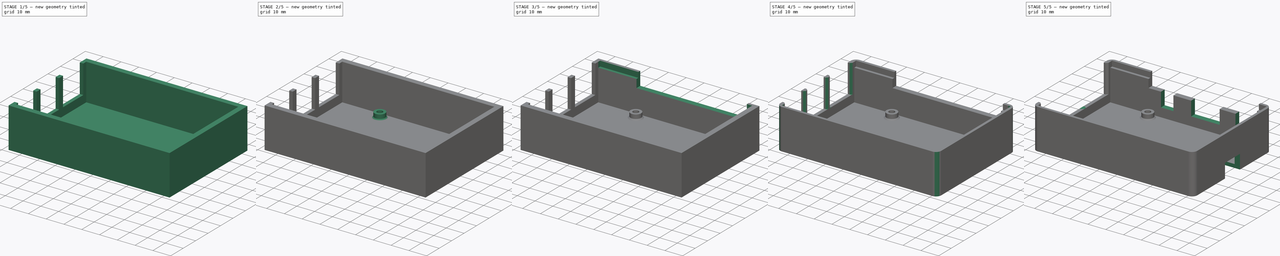
[diagram: build sequence overview — one tinted view per stage of 5, left to right]
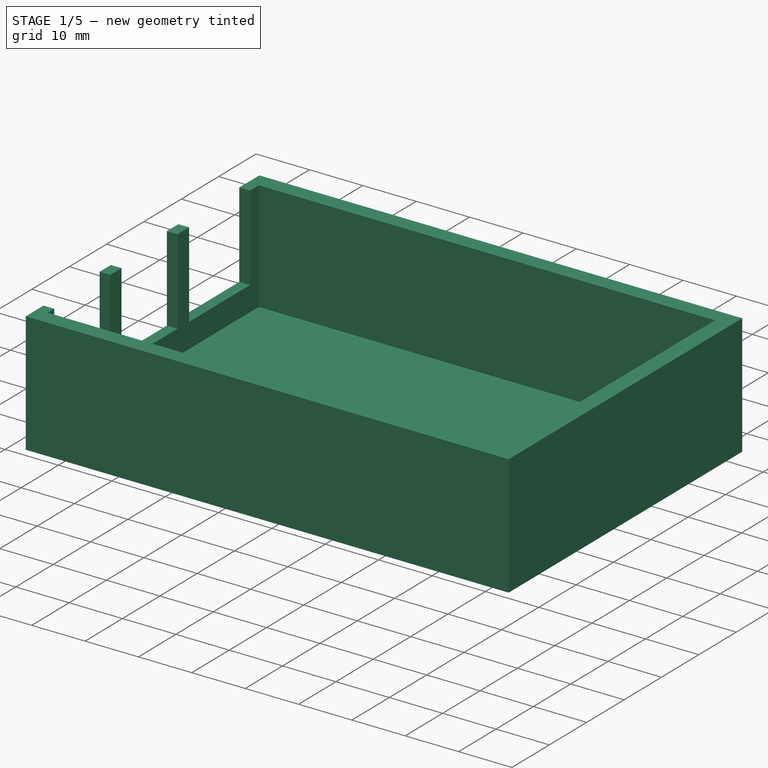
[diagram: stage 1 of 5 — iso view after this stage's code; geometry added in this stage tinted green]
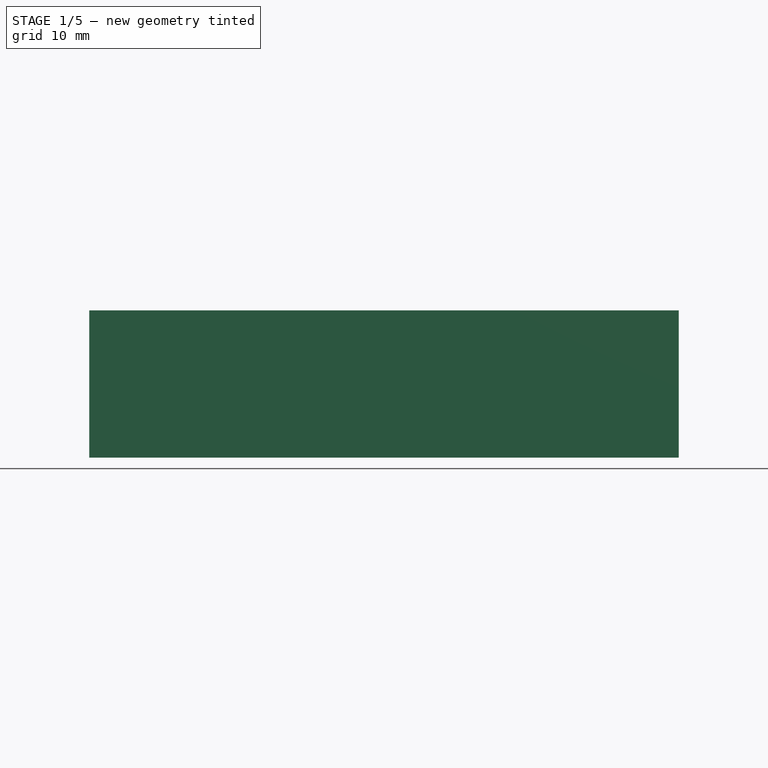
[diagram: stage 1 of 5 — front view after this stage's code; geometry added in this stage tinted green]
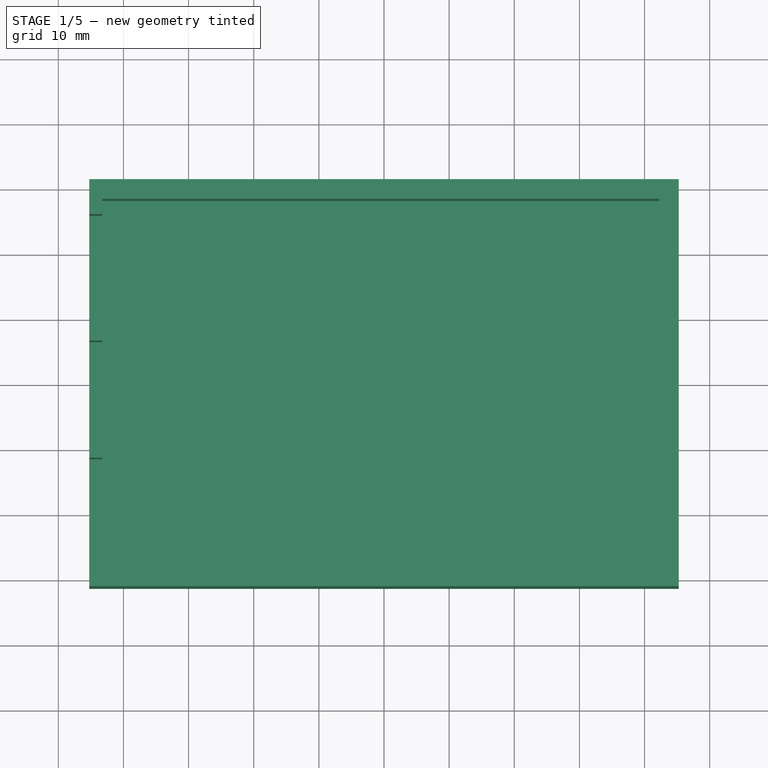
[diagram: stage 1 of 5 — top view after this stage's code; geometry added in this stage tinted green]
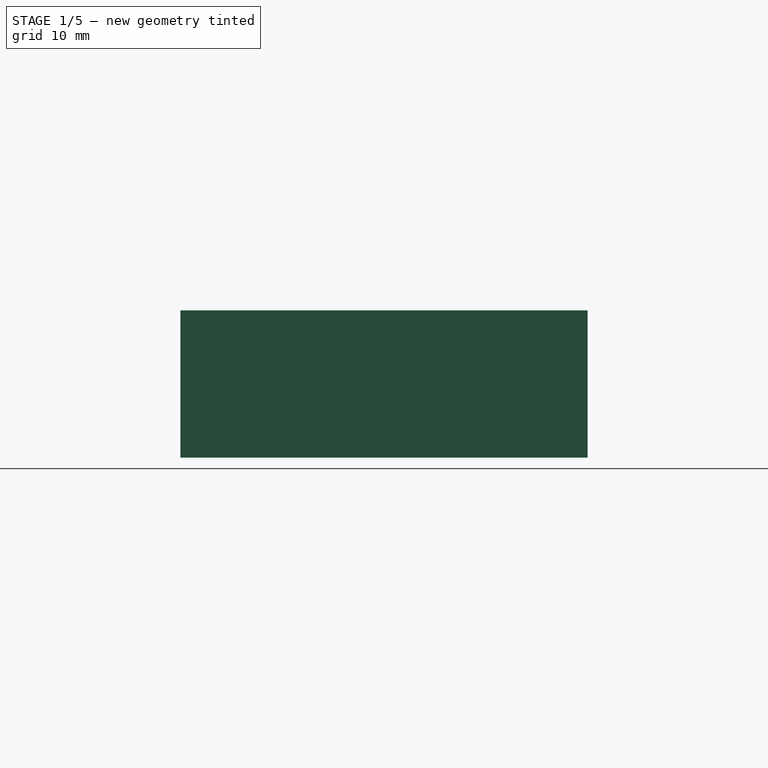
[diagram: stage 1 of 5 — right view after this stage's code; geometry added in this stage tinted green]
FCSTD DOCUMENT  (FreeCAD 0.19R19180 (Git))
Label: base
License: All rights reserved
LicenseURL: http://en.wikipedia.org/wiki/All_rights_reserved
objects: Sketcher::SketchObject×14, PartDesign::Pocket×12, PartDesign::Pad×2, PartDesign::Chamfer×2, PartDesign::Fillet×1, PartDesign::Body×1
note: 46 computed .brp shape members not serialized (recipe doc carries the construction recipe); baked Part::Feature solids carry a one-line shape summary decoded from their .brp

FEATURE [Sketcher::SketchObject] Sketch
  MapMode = 5
  Support = -> [XY_Plane]
  sketch-geometry (4):
    g0: LineSegment StartX=-45.25 StartY=31.25 StartZ=0 EndX=45.25 EndY=31.25 EndZ=0
    g1: LineSegment StartX=45.25 StartY=31.25 StartZ=0 EndX=45.25 EndY=-31.25 EndZ=0
    g2: LineSegment StartX=45.25 StartY=-31.25 StartZ=0 EndX=-45.25 EndY=-31.25 EndZ=0
    g3: LineSegment StartX=-45.25 StartY=-31.25 StartZ=0 EndX=-45.25 EndY=31.25 EndZ=0
  constraints (12):
    c: Coincident(g0,g1)
    c: Coincident(g1,g2)
    c: Coincident(g2,g3)
    c: Coincident(g3,g0)
    c: Horizontal(g0)
    c: Horizontal(g2)
    c: Vertical(g1)
    c: Vertical(g3)
    c: DistanceX(g0,g0) = 90.5
    c: DistanceY(g1,g1) = 62.5
    c: DistanceX(g0,g-1) = 45.25
    c: DistanceY(g-1,g0) = 31.25
FEATURE [PartDesign::Pad] Pad
  Length = 22.6
  Length2 = 100
  Profile = -> Sketch
  Type = 0
FEATURE [Sketcher::SketchObject] Sketch001
  ExternalGeometry = -> [Pad]
  MapMode = 5
  Placement = pos=(0,0,22.6) rot=(0,0,1;0rad)
  Support = -> [Pad]
  sketch-geometry (4):
    g0: LineSegment StartX=-43.25 StartY=28.25 StartZ=0 EndX=42.25 EndY=28.25 EndZ=0
    g1: LineSegment StartX=42.25 StartY=28.25 StartZ=0 EndX=42.25 EndY=-28.25 EndZ=0
    g2: LineSegment StartX=42.25 StartY=-28.25 StartZ=0 EndX=-43.25 EndY=-28.25 EndZ=0
    g3: LineSegment StartX=-43.25 StartY=-28.25 StartZ=0 EndX=-43.25 EndY=28.25 EndZ=0
  constraints (12):
    c: Coincident(g0,g1)
    c: Coincident(g1,g2)
    c: Coincident(g2,g3)
    c: Coincident(g3,g0)
    c: Horizontal(g0)
    c: Horizontal(g2)
    c: Vertical(g1)
    c: Vertical(g3)
    c: DistanceX(g-3,g2) = 2
    c: DistanceY(g-3,g2) = 3
    c: DistanceX(g1,g-4) = 3
    c: DistanceY(g0,g-5) = 3
FEATURE [PartDesign::Pocket] Pocket
  BaseFeature = -> Pad
  Length = 20.6
  Length2 = 100
  Profile = -> Sketch001
  Type = 0
FEATURE [Sketcher::SketchObject] Sketch002
  ExternalGeometry = -> [Pocket]
  MapMode = 5
  Placement = pos=(-45.25,0,0) rot=(0.57735,-0.57735,-0.57735;2.0944rad)
  Support = -> [Pocket]
  sketch-geometry (12):
    g0: LineSegment StartX=11.5 StartY=22.6 StartZ=0 EndX=26.5 EndY=22.6 EndZ=0
    g1: LineSegment StartX=26.5 StartY=22.6 StartZ=0 EndX=26.5 EndY=6.6 EndZ=0
    g2: LineSegment StartX=26.5 StartY=6.6 StartZ=0 EndX=11.5 EndY=6.6 EndZ=0
    g3: LineSegment StartX=11.5 StartY=6.6 StartZ=0 EndX=11.5 EndY=22.6 EndZ=0
    g4: LineSegment StartX=-6.5 StartY=22.6 StartZ=0 EndX=8.5 EndY=22.6 EndZ=0
    g5: LineSegment StartX=8.5 StartY=22.6 StartZ=0 EndX=8.5 EndY=6.6 EndZ=0
    g6: LineSegment StartX=8.5 StartY=6.6 StartZ=0 EndX=-6.5 EndY=6.6 EndZ=0
    g7: LineSegment StartX=-6.5 StartY=6.6 StartZ=0 EndX=-6.5 EndY=22.6 EndZ=0
    g8: LineSegment StartX=-25.9 StartY=22.6 StartZ=0 EndX=-9.6 EndY=22.6 EndZ=0
    g9: LineSegment StartX=-9.6 StartY=22.6 StartZ=0 EndX=-9.6 EndY=6.6 EndZ=0
    g10: LineSegment StartX=-9.6 StartY=6.6 StartZ=0 EndX=-25.9 EndY=6.6 EndZ=0
    g11: LineSegment StartX=-25.9 StartY=6.6 StartZ=0 EndX=-25.9 EndY=22.6 EndZ=0
  constraints (36):
    c: Coincident(g0,g1)
    c: Coincident(g1,g2)
    c: Coincident(g2,g3)
    c: Coincident(g3,g0)
    c: Horizontal(g0)
    c: Horizontal(g2)
    c: Vertical(g1)
    c: Vertical(g3)
    c: Coincident(g4,g5)
    c: Coincident(g5,g6)
    c: Coincident(g6,g7)
    c: Coincident(g7,g4)
    c: Horizontal(g4)
    c: Horizontal(g6)
    c: Vertical(g5)
    c: Vertical(g7)
    c: Coincident(g8,g9)
    c: Coincident(g9,g10)
    c: Coincident(g10,g11)
    c: Coincident(g11,g8)
    c: Horizontal(g8)
    c: Horizontal(g10)
    c: Vertical(g9)
    c: Vertical(g11)
    c: Equal(g1,g5)
    c: DistanceY(g1,g1) = 16
    c: Horizontal(g1,g5)
    c: Equal(g2,g6)
    c: DistanceX(g6,g6) = 15
    c: DistanceX(g8,g8) = 16.3
    c: Horizontal(g0,g-4)
    c: DistanceY(g-1,g9) = 6.6
    c: Horizontal(g8,g4)
    c: DistanceX(g-5,g10) = 5.35
    c: DistanceX(g-5,g6) = 24.75
    c: DistanceX(g-5,g2) = 42.75
FEATURE [PartDesign::Pocket] Pocket001
  BaseFeature = -> Pocket
  Length = 5
  Length2 = 100
  Profile = -> Sketch002
  Type = 0
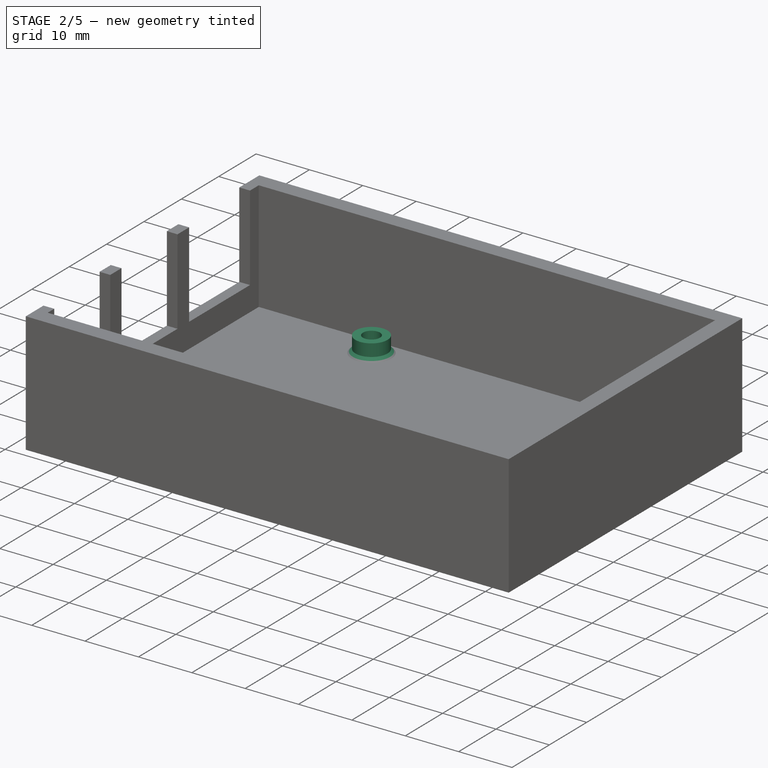
[diagram: stage 2 of 5 — iso view after this stage's code; geometry added in this stage tinted green]
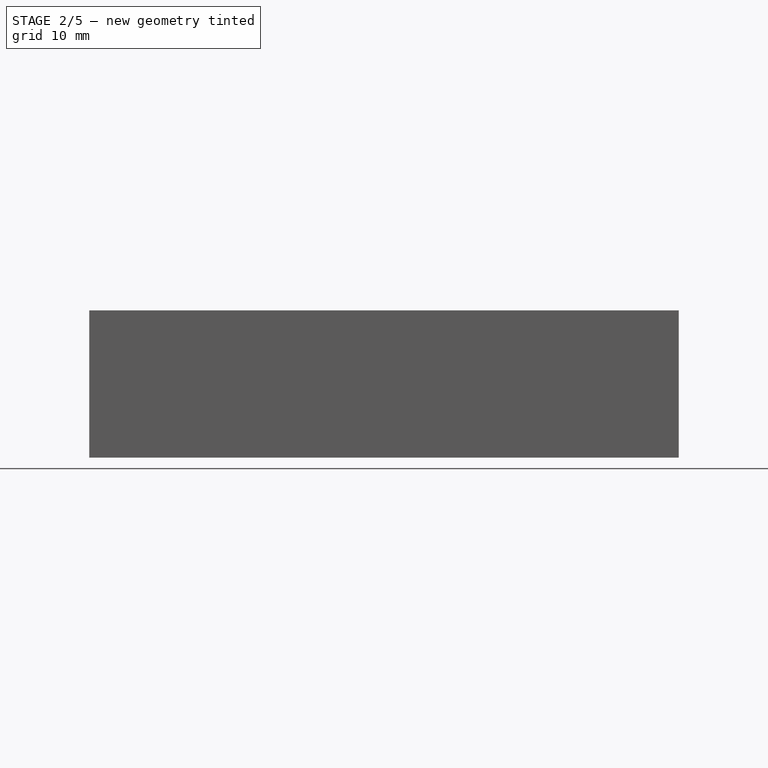
[diagram: stage 2 of 5 — front view after this stage's code; geometry added in this stage tinted green]
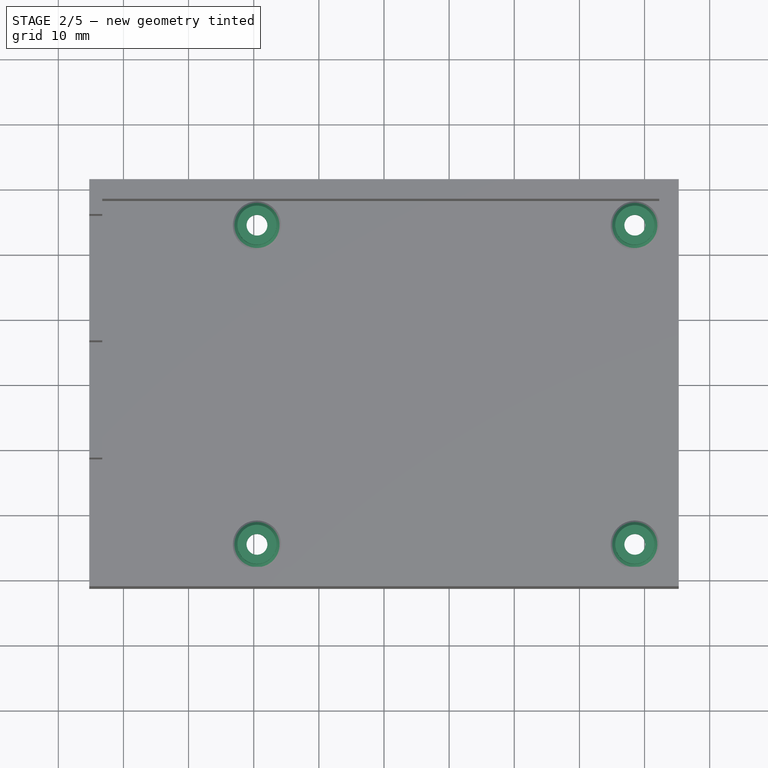
[diagram: stage 2 of 5 — top view after this stage's code; geometry added in this stage tinted green]
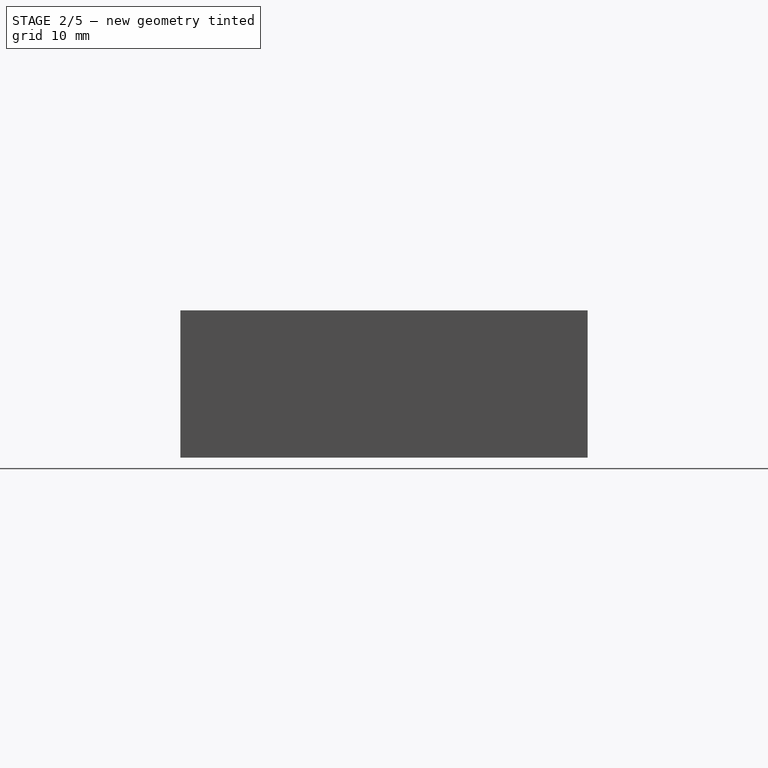
[diagram: stage 2 of 5 — right view after this stage's code; geometry added in this stage tinted green]
FEATURE [Sketcher::SketchObject] Sketch003
  ExternalGeometry = -> [Pocket001]
  MapMode = 5
  Placement = pos=(0,0,2) rot=(0,0,1;0rad)
  Support = -> [Pocket001]
  sketch-geometry (4):
    g0: Circle CenterX=-19.5 CenterY=24.5 CenterZ=0 NormalX=0 NormalY=0 NormalZ=1 AngleXU=0 Radius=3
    g1: Circle CenterX=38.5 CenterY=24.5 CenterZ=0 NormalX=0 NormalY=0 NormalZ=1 AngleXU=0 Radius=3
    g2: Circle CenterX=-19.5 CenterY=-24.5 CenterZ=0 NormalX=0 NormalY=0 NormalZ=1 AngleXU=0 Radius=3
    g3: Circle CenterX=38.5 CenterY=-24.5 CenterZ=0 NormalX=0 NormalY=0 NormalZ=1 AngleXU=0 Radius=3
  constraints (12):
    c: Horizontal(g0,g1)
    c: Horizontal(g2,g3)
    c: Vertical(g0,g2)
    c: Vertical(g1,g3)
    c: Diameter(g2) = 6
    c: Equal(g2,g0)
    c: Equal(g2,g1)
    c: Equal(g2,g3)
    c: DistanceX(g0,g1) = 58
    c: DistanceY(g2,g0) = 49
    c: DistanceX(g1,g-3) = 3.75
    c: DistanceY(g1,g-3) = 3.75
FEATURE [PartDesign::Pad] Pad001
  BaseFeature = -> Pocket001
  Length = 3
  Length2 = 100
  Profile = -> Sketch003
  Type = 0
FEATURE [Sketcher::SketchObject] Sketch004
  ExternalGeometry = -> [Pad001]
  MapMode = 5
  Placement = pos=(0,0,5) rot=(0,0,1;0rad)
  Support = -> [Pad001]
  sketch-geometry (4):
    g0: Circle CenterX=-19.5 CenterY=24.5 CenterZ=0 NormalX=0 NormalY=0 NormalZ=1 AngleXU=0 Radius=1.6
    g1: Circle CenterX=38.5 CenterY=24.5 CenterZ=0 NormalX=0 NormalY=0 NormalZ=1 AngleXU=0 Radius=1.6
    g2: Circle CenterX=-19.5 CenterY=-24.5 CenterZ=0 NormalX=0 NormalY=0 NormalZ=1 AngleXU=0 Radius=1.6
    g3: Circle CenterX=38.5 CenterY=-24.5 CenterZ=0 NormalX=0 NormalY=0 NormalZ=1 AngleXU=0 Radius=1.6
  constraints (12):
    c: Horizontal(g3,g2)
    c: Horizontal(g0,g1)
    c: Vertical(g0,g2)
    c: Vertical(g1,g3)
    c: DistanceX(g0,g1) = 58
    c: DistanceY(g2,g0) = 49
    c: DistanceX(g1,g-3) = 3.75
    c: DistanceY(g1,g-3) = 3.75
    c: Diameter(g0) = 3.2
    c: Equal(g0,g1)
    c: Equal(g0,g3)
    c: Equal(g0,g2)
FEATURE [PartDesign::Pocket] Pocket002
  BaseFeature = -> Pad001
  Length = 5
  Length2 = 100
  Profile = -> Sketch004
  Type = 0
FEATURE [Sketcher::SketchObject] Sketch005
  ExternalGeometry = -> [Pocket002]
  MapMode = 5
  Placement = pos=(0,0,0) rot=(1,0,0;3.14159rad)
  Support = -> [Pocket002]
  sketch-geometry (4):
    g0: Circle CenterX=38.5 CenterY=24.5 CenterZ=0 NormalX=0 NormalY=0 NormalZ=1 AngleXU=0 Radius=2.65
    g1: Circle CenterX=-19.5 CenterY=24.5 CenterZ=0 NormalX=0 NormalY=0 NormalZ=1 AngleXU=0 Radius=2.65
    g2: Circle CenterX=-19.5 CenterY=-24.5 CenterZ=0 NormalX=0 NormalY=0 NormalZ=1 AngleXU=0 Radius=2.65
    g3: Circle CenterX=38.5 CenterY=-24.5 CenterZ=0 NormalX=0 NormalY=0 NormalZ=1 AngleXU=0 Radius=2.65
  constraints (12):
    c: Diameter(g1) = 5.3
    c: Equal(g1,g0)
    c: Equal(g1,g3)
    c: Equal(g1,g2)
    c: Horizontal(g1,g0)
    c: Horizontal(g2,g3)
    c: Vertical(g2,g1)
    c: Vertical(g0,g3)
    c: DistanceX(g1,g0) = 58
    c: DistanceY(g2,g1) = 49
    c: DistanceX(g0,g-3) = 6.75
    c: DistanceY(g0,g-3) = 6.75
FEATURE [PartDesign::Pocket] Pocket003
  BaseFeature = -> Pocket002
  Length = 2.5
  Length2 = 100
  Profile = -> Sketch005
  Type = 0
FEATURE [PartDesign::Chamfer] Chamfer
  Base = -> Pocket003 [Edge78,Edge77,Edge80,Edge79]
  BaseFeature = -> Pocket003
  Size = 0.7
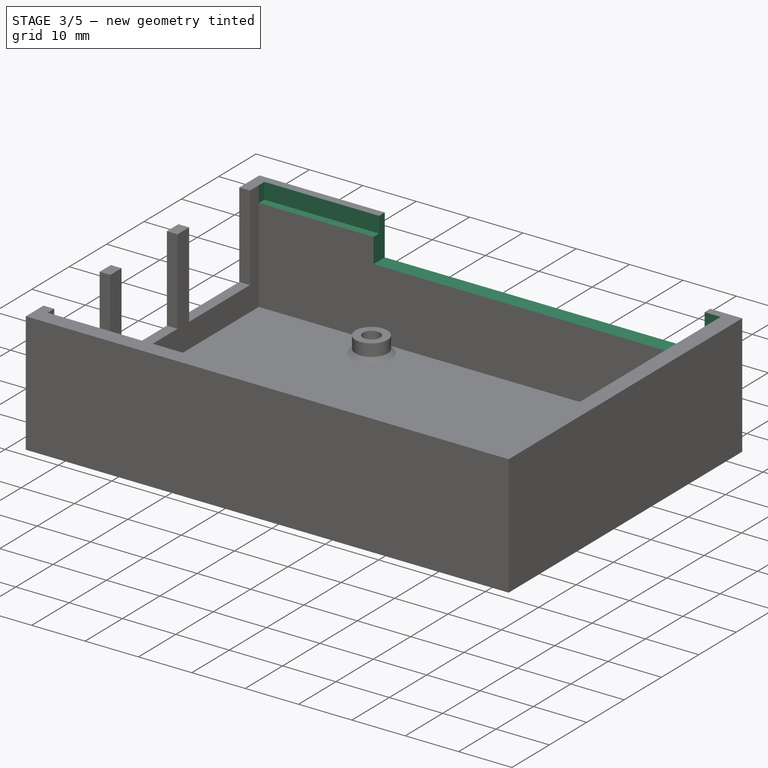
[diagram: stage 3 of 5 — iso view after this stage's code; geometry added in this stage tinted green]
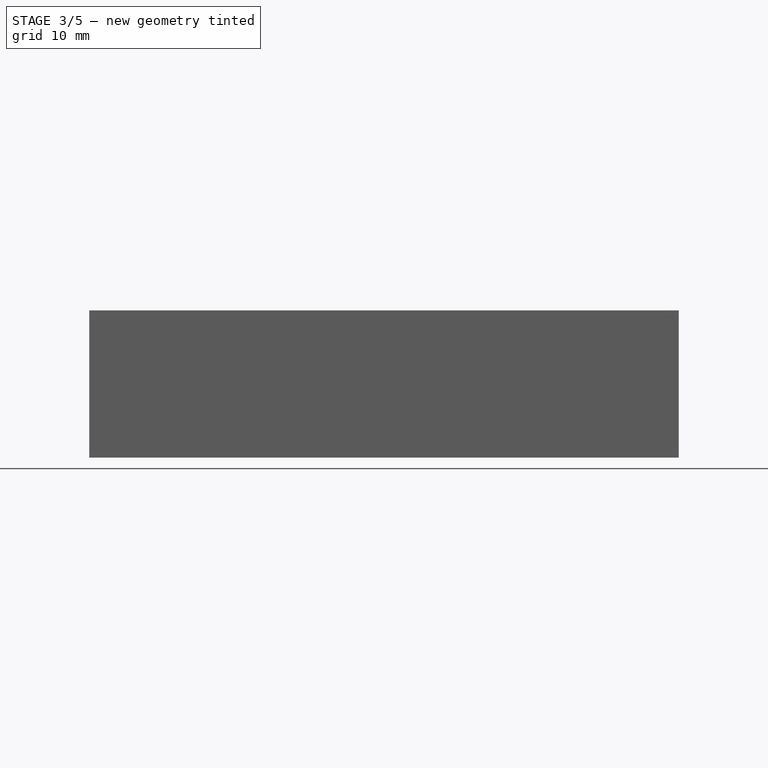
[diagram: stage 3 of 5 — front view after this stage's code; geometry added in this stage tinted green]
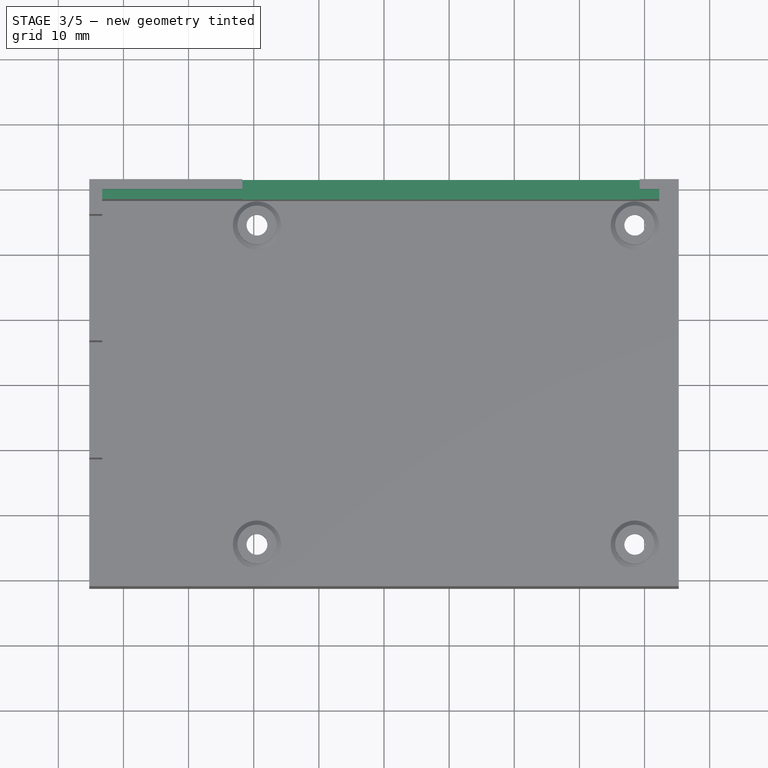
[diagram: stage 3 of 5 — top view after this stage's code; geometry added in this stage tinted green]
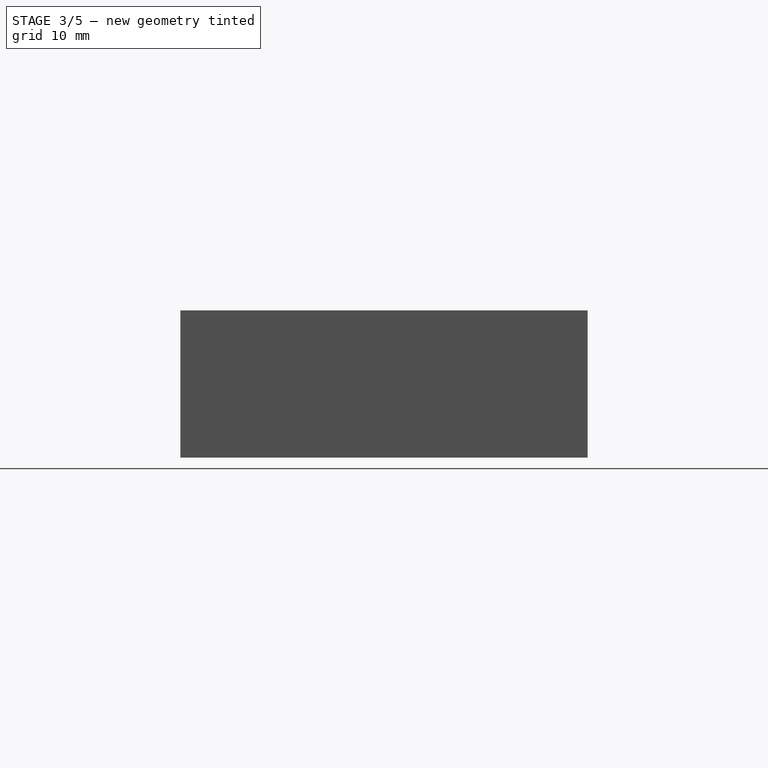
[diagram: stage 3 of 5 — right view after this stage's code; geometry added in this stage tinted green]
FEATURE [Sketcher::SketchObject] Sketch006
  ExternalGeometry = -> [Chamfer]
  MapMode = 5
  Placement = pos=(0,0,22.6) rot=(0,0,1;0rad)
  Support = -> [Chamfer]
  sketch-geometry (4):
    g0: LineSegment StartX=-21.75 StartY=31.25 StartZ=0 EndX=39.25 EndY=31.25 EndZ=0
    g1: LineSegment StartX=39.25 StartY=31.25 StartZ=0 EndX=39.25 EndY=28.25 EndZ=0
    g2: LineSegment StartX=39.25 StartY=28.25 StartZ=0 EndX=-21.75 EndY=28.25 EndZ=0
    g3: LineSegment StartX=-21.75 StartY=28.25 StartZ=0 EndX=-21.75 EndY=31.25 EndZ=0
  constraints (12):
    c: Coincident(g0,g1)
    c: Coincident(g1,g2)
    c: Coincident(g2,g3)
    c: Coincident(g3,g0)
    c: Horizontal(g0)
    c: Horizontal(g2)
    c: Vertical(g1)
    c: Vertical(g3)
    c: DistanceY(g0,g-4) = 0
    c: DistanceY(g-3,g1) = 0
    c: DistanceX(g1,g-3) = 3
    c: DistanceX(g0,g0) = 61
FEATURE [PartDesign::Pocket] Pocket004
  BaseFeature = -> Chamfer
  Length = 7.6
  Length2 = 100
  Profile = -> Sketch006
  Type = 0
FEATURE [Sketcher::SketchObject] Sketch007
  ExternalGeometry = -> [Pocket004]
  MapMode = 5
  Placement = pos=(0,0,22.6) rot=(0,0,1;0rad)
  Support = -> [Pocket004]
  sketch-geometry (4):
    g0: LineSegment StartX=-43.25 StartY=29.75 StartZ=0 EndX=-21.75 EndY=29.75 EndZ=0
    g1: LineSegment StartX=-21.75 StartY=29.75 StartZ=0 EndX=-21.75 EndY=28.25 EndZ=0
    g2: LineSegment StartX=-21.75 StartY=28.25 StartZ=0 EndX=-43.25 EndY=28.25 EndZ=0
    g3: LineSegment StartX=-43.25 StartY=28.25 StartZ=0 EndX=-43.25 EndY=29.75 EndZ=0
  constraints (12):
    c: Coincident(g0,g1)
    c: Coincident(g1,g2)
    c: Coincident(g2,g3)
    c: Coincident(g3,g0)
    c: Horizontal(g0)
    c: Horizontal(g2)
    c: Vertical(g1)
    c: Vertical(g3)
    c: DistanceY(g-3,g1) = 0
    c: DistanceX(g1,g-3) = 0
    c: DistanceX(g-4,g2) = 0
    c: DistanceY(g3,g3) = 1.5
FEATURE [PartDesign::Pocket] Pocket005
  BaseFeature = -> Pocket004
  Length = 3
  Length2 = 100
  Profile = -> Sketch007
  Type = 0
FEATURE [Sketcher::SketchObject] Sketch008
  ExternalGeometry = -> [Pocket005]
  MapMode = 5
  Placement = pos=(0,0,22.6) rot=(0,0,1;0rad)
  Support = -> [Pocket005]
  sketch-geometry (4):
    g0: LineSegment StartX=39.25 StartY=29.75 StartZ=0 EndX=42.25 EndY=29.75 EndZ=0
    g1: LineSegment StartX=42.25 StartY=29.75 StartZ=0 EndX=42.25 EndY=28.25 EndZ=0
    g2: LineSegment StartX=42.25 StartY=28.25 StartZ=0 EndX=39.25 EndY=28.25 EndZ=0
    g3: LineSegment StartX=39.25 StartY=28.25 StartZ=0 EndX=39.25 EndY=29.75 EndZ=0
  constraints (11):
    c: Coincident(g0,g1)
    c: Coincident(g1,g2)
    c: Coincident(g2,g3)
    c: Coincident(g3,g0)
    c: Horizontal(g0)
    c: Horizontal(g2)
    c: Vertical(g1)
    c: Vertical(g3)
    c: Coincident(g1,g-4)
    c: DistanceX(g-3,g2) = 0
    c: DistanceY(g1,g1) = 1.5
FEATURE [PartDesign::Pocket] Pocket006
  BaseFeature = -> Pocket005
  Length = 3
  Length2 = 100
  Profile = -> Sketch008
  Type = 0
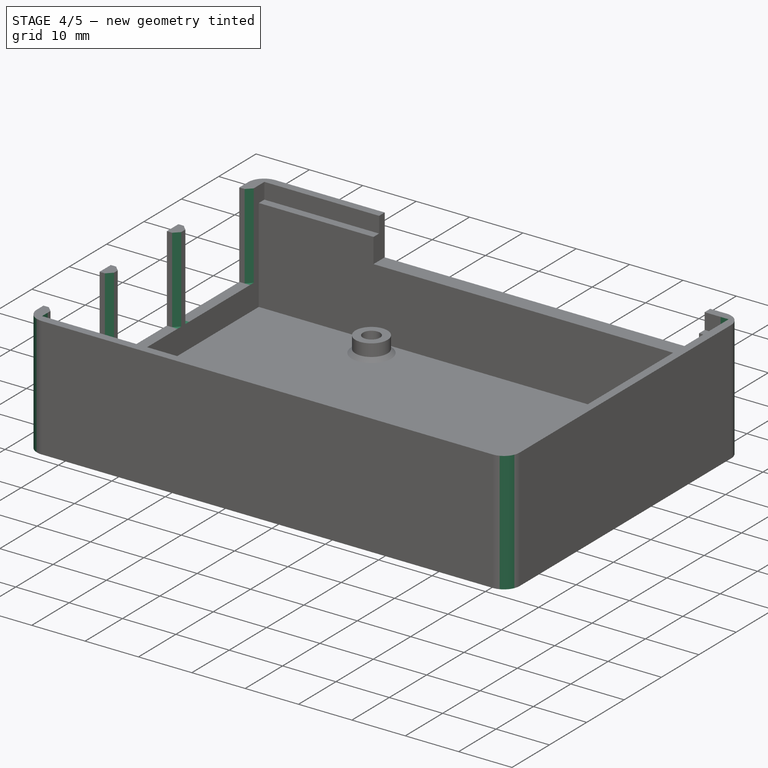
[diagram: stage 4 of 5 — iso view after this stage's code; geometry added in this stage tinted green]
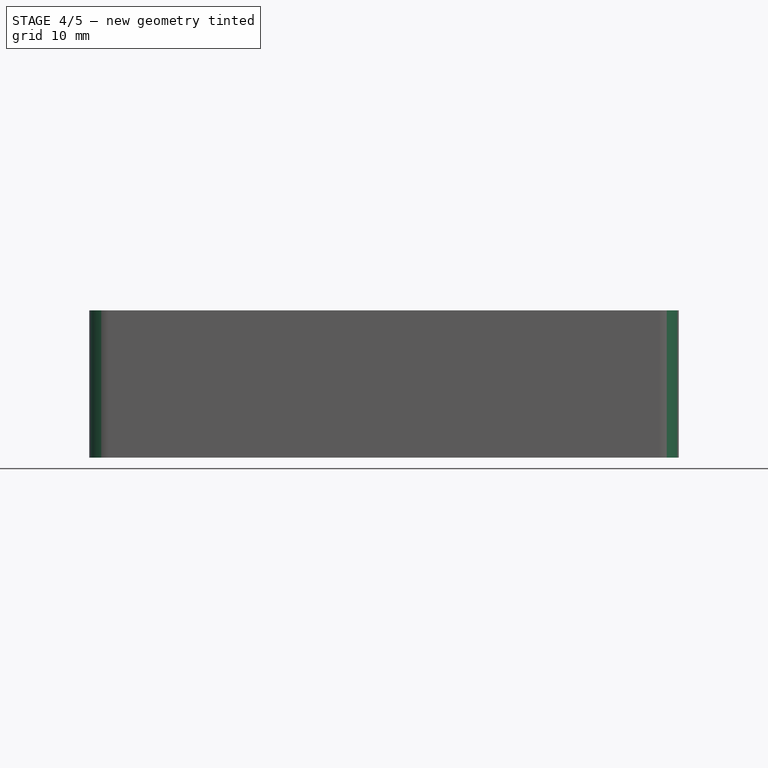
[diagram: stage 4 of 5 — front view after this stage's code; geometry added in this stage tinted green]
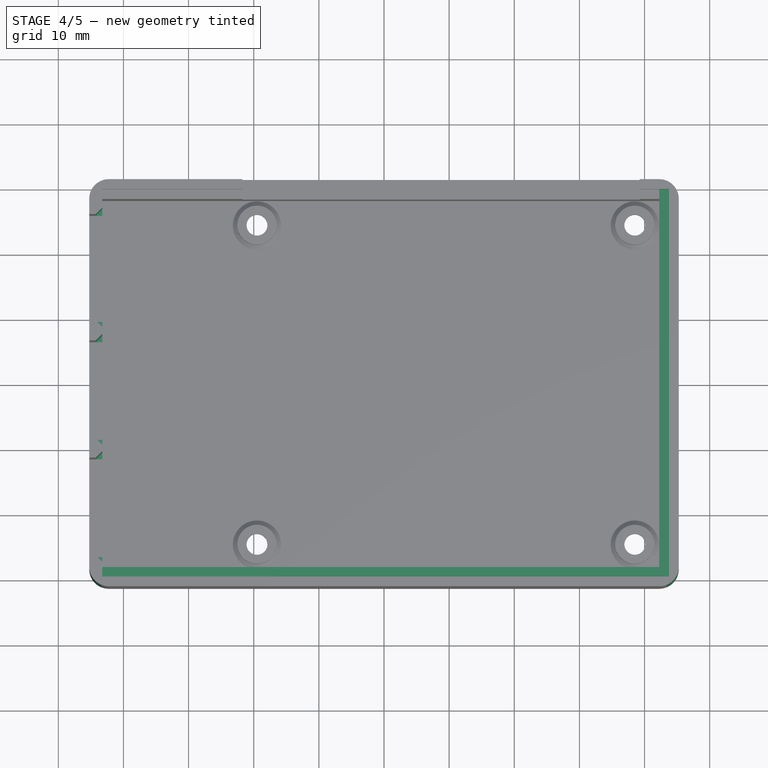
[diagram: stage 4 of 5 — top view after this stage's code; geometry added in this stage tinted green]
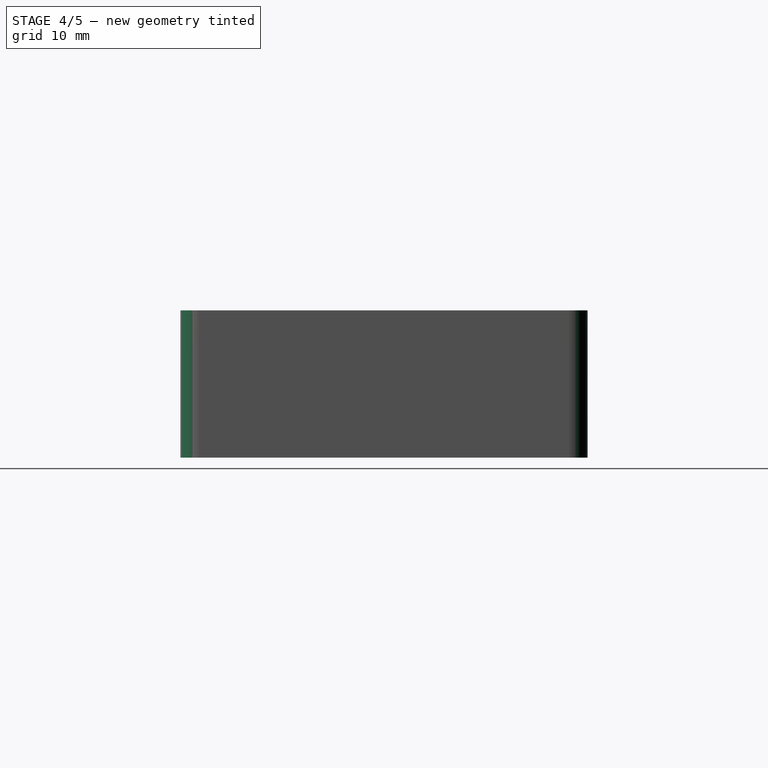
[diagram: stage 4 of 5 — right view after this stage's code; geometry added in this stage tinted green]
FEATURE [Sketcher::SketchObject] Sketch009
  ExternalGeometry = -> [Pocket006]
  MapMode = 5
  Placement = pos=(0,0,22.6) rot=(0,0,1;0rad)
  Support = -> [Pocket006]
  sketch-geometry (4):
    g0: LineSegment StartX=42.25 StartY=29.75 StartZ=0 EndX=43.75 EndY=29.75 EndZ=0
    g1: LineSegment StartX=43.75 StartY=29.75 StartZ=0 EndX=43.75 EndY=-28.25 EndZ=0
    g2: LineSegment StartX=43.75 StartY=-28.25 StartZ=0 EndX=42.25 EndY=-28.25 EndZ=0
    g3: LineSegment StartX=42.25 StartY=-28.25 StartZ=0 EndX=42.25 EndY=29.75 EndZ=0
  constraints (11):
    c: Coincident(g0,g1)
    c: Coincident(g1,g2)
    c: Coincident(g2,g3)
    c: Coincident(g3,g0)
    c: Horizontal(g0)
    c: Horizontal(g2)
    c: Vertical(g1)
    c: Vertical(g3)
    c: Coincident(g2,g-3)
    c: DistanceY(g0,g-4) = 0
    c: DistanceX(g0,g0) = 1.5
FEATURE [PartDesign::Pocket] Pocket007
  BaseFeature = -> Pocket006
  Length = 3
  Length2 = 100
  Profile = -> Sketch009
  Type = 0
FEATURE [Sketcher::SketchObject] Sketch010
  ExternalGeometry = -> [Pocket007]
  MapMode = 5
  Placement = pos=(0,0,22.6) rot=(0,0,1;0rad)
  Support = -> [Pocket007]
  sketch-geometry (4):
    g0: LineSegment StartX=43.75 StartY=-28.25 StartZ=0 EndX=-43.25 EndY=-28.25 EndZ=0
    g1: LineSegment StartX=-43.25 StartY=-28.25 StartZ=0 EndX=-43.25 EndY=-29.75 EndZ=0
    g2: LineSegment StartX=-43.25 StartY=-29.75 StartZ=0 EndX=43.75 EndY=-29.75 EndZ=0
    g3: LineSegment StartX=43.75 StartY=-29.75 StartZ=0 EndX=43.75 EndY=-28.25 EndZ=0
  constraints (11):
    c: Coincident(g0,g1)
    c: Coincident(g1,g2)
    c: Coincident(g2,g3)
    c: Coincident(g3,g0)
    c: Horizontal(g0)
    c: Horizontal(g2)
    c: Vertical(g1)
    c: Vertical(g3)
    c: Coincident(g0,g-3)
    c: DistanceY(g3,g3) = 1.5
    c: DistanceX(g-4,g0) = 0
FEATURE [PartDesign::Pocket] Pocket008
  BaseFeature = -> Pocket007
  Length = 3
  Length2 = 100
  Profile = -> Sketch010
  Type = 0
FEATURE [PartDesign::Chamfer] Chamfer001
  Base = -> Pocket008 [Edge21,Edge23,Edge25,Edge27,Edge29,Edge19]
  BaseFeature = -> Pocket008
  Size = 1
FEATURE [PartDesign::Fillet] Fillet
  Base = -> Chamfer001 [Edge105,Edge108,Edge99,Edge112]
  BaseFeature = -> Chamfer001
  Radius = 3
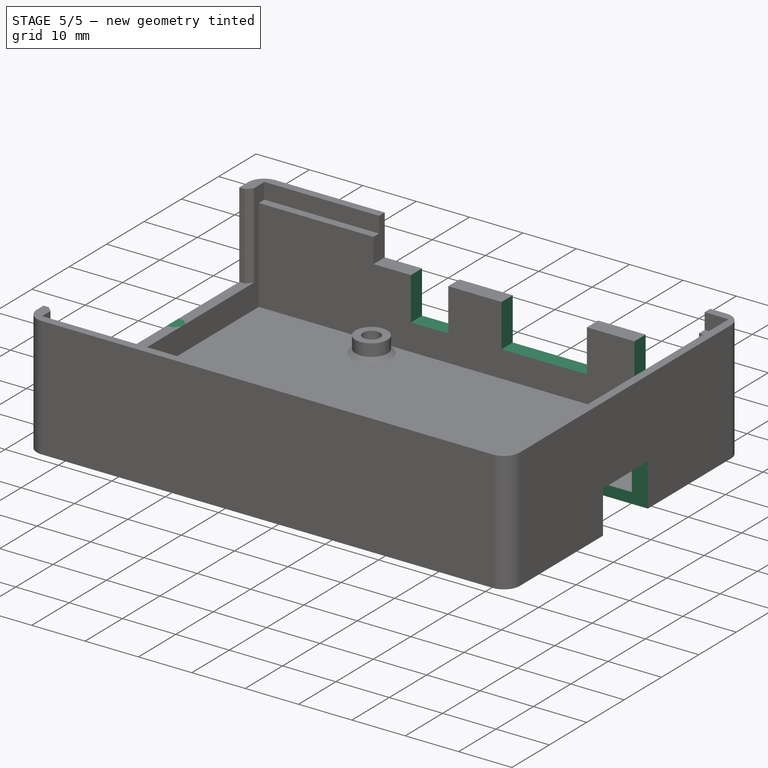
[diagram: stage 5 of 5 — iso view after this stage's code; geometry added in this stage tinted green]
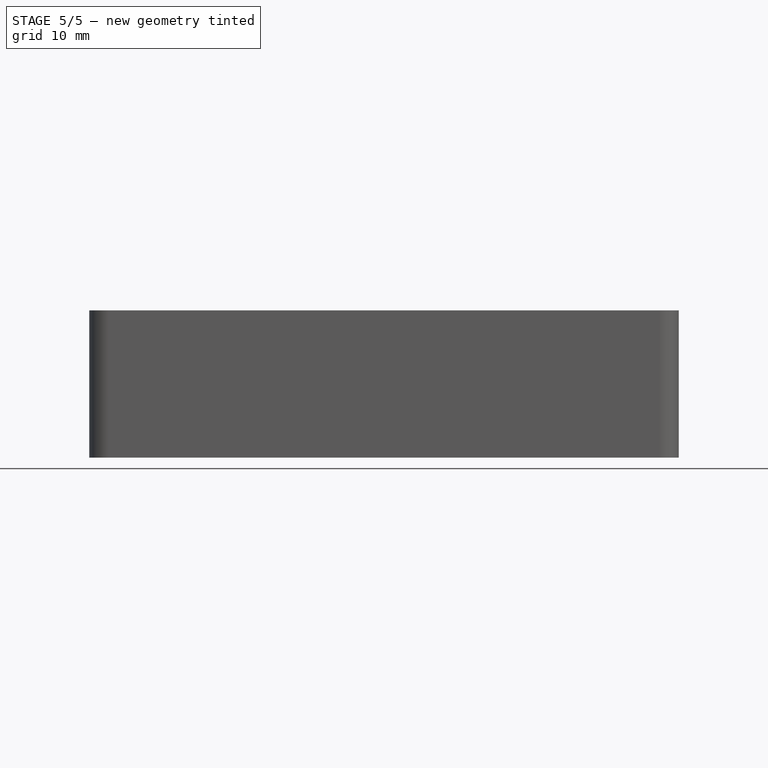
[diagram: stage 5 of 5 — front view after this stage's code; geometry added in this stage tinted green]
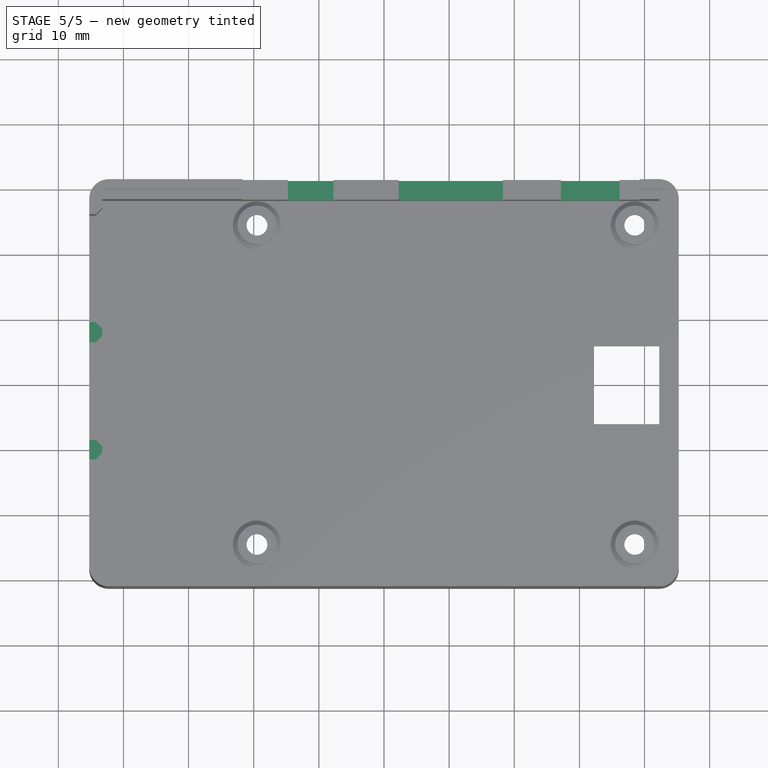
[diagram: stage 5 of 5 — top view after this stage's code; geometry added in this stage tinted green]
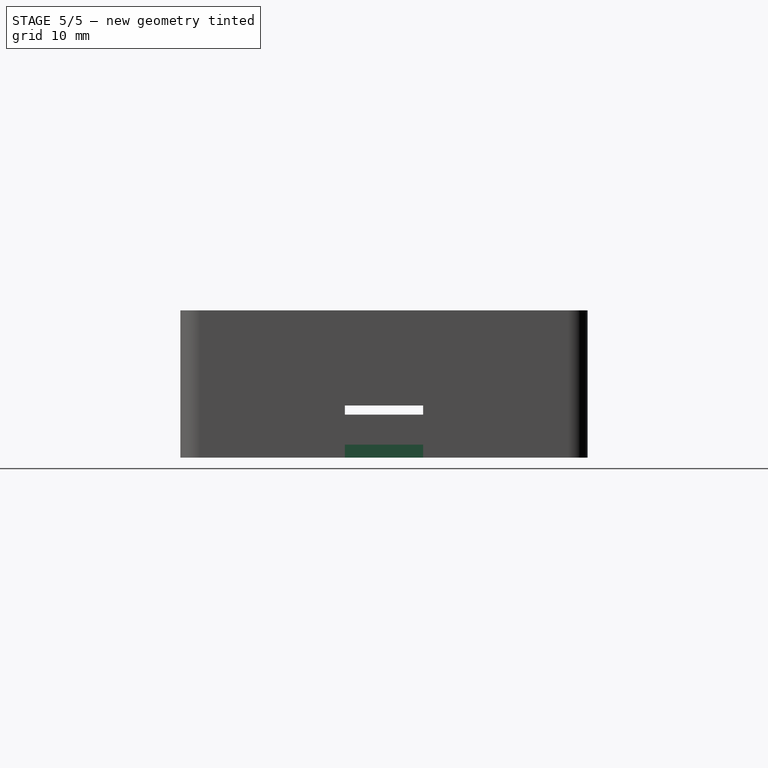
[diagram: stage 5 of 5 — right view after this stage's code; geometry added in this stage tinted green]
FEATURE [Sketcher::SketchObject] Sketch011
  ExternalGeometry = -> [Fillet]
  MapMode = 5
  Placement = pos=(0,31.25,0) rot=(0,0.707107,0.707107;3.14159rad)
  Support = -> [Fillet]
  sketch-geometry (12):
    g0: LineSegment StartX=-36.15 StartY=15 StartZ=0 EndX=-27.15 EndY=15 EndZ=0
    g1: LineSegment StartX=-27.15 StartY=15 StartZ=0 EndX=-27.15 EndY=7 EndZ=0
    g2: LineSegment StartX=-27.15 StartY=7 StartZ=0 EndX=-36.15 EndY=7 EndZ=0
    g3: LineSegment StartX=-36.15 StartY=7 StartZ=0 EndX=-36.15 EndY=15 EndZ=0
    g4: LineSegment StartX=-18.25 StartY=15 StartZ=0 EndX=-2.25 EndY=15 EndZ=0
    g5: LineSegment StartX=-2.25 StartY=15 StartZ=0 EndX=-2.25 EndY=7 EndZ=0
    g6: LineSegment StartX=-2.25 StartY=7 StartZ=0 EndX=-18.25 EndY=7 EndZ=0
    g7: LineSegment StartX=-18.25 StartY=7 StartZ=0 EndX=-18.25 EndY=15 EndZ=0
    g8: LineSegment StartX=7.75 StartY=15 StartZ=0 EndX=14.75 EndY=15 EndZ=0
    g9: LineSegment StartX=14.75 StartY=15 StartZ=0 EndX=14.75 EndY=7 EndZ=0
    g10: LineSegment StartX=14.75 StartY=7 StartZ=0 EndX=7.75 EndY=7 EndZ=0
    g11: LineSegment StartX=7.75 StartY=7 StartZ=0 EndX=7.75 EndY=15 EndZ=0
  constraints (36):
    c: Coincident(g0,g1)
    c: Coincident(g1,g2)
    c: Coincident(g2,g3)
    c: Coincident(g3,g0)
    c: Horizontal(g0)
    c: Horizontal(g2)
    c: Vertical(g1)
    c: Vertical(g3)
    c: Coincident(g4,g5)
    c: Coincident(g5,g6)
    c: Coincident(g6,g7)
    c: Coincident(g7,g4)
    c: Horizontal(g4)
    c: Horizontal(g6)
    c: Vertical(g5)
    c: Vertical(g7)
    c: Coincident(g8,g9)
    c: Coincident(g9,g10)
    c: Coincident(g10,g11)
    c: Coincident(g11,g8)
    c: Horizontal(g8)
    c: Horizontal(g10)
    c: Vertical(g9)
    c: Vertical(g11)
    c: Horizontal(g-3,g8)
    c: Horizontal(g8,g4)
    c: Horizontal(g4,g0)
    c: DistanceX(g2,g2) = 9
    c: DistanceX(g6,g6) = 16
    c: DistanceX(g10,g10) = 7
    c: DistanceX(g-4,g2) = 9.1
    c: DistanceX(g-4,g6) = 27
    c: DistanceX(g-4,g10) = 53
    c: Equal(g7,g11)
    c: Equal(g11,g3)
    c: DistanceY(g3,g3) = 8
FEATURE [PartDesign::Pocket] Pocket009
  BaseFeature = -> Fillet
  Length = 5
  Length2 = 100
  Profile = -> Sketch011
  Type = 0
FEATURE [Sketcher::SketchObject] Sketch012
  ExternalGeometry = -> [Pocket009]
  MapMode = 5
  Placement = pos=(-45.25,0,0) rot=(0.57735,-0.57735,-0.57735;2.0944rad)
  Support = -> [Pocket009]
  sketch-geometry (4):
    g0: LineSegment StartX=-25.9 StartY=22.6 StartZ=0 EndX=26.5 EndY=22.6 EndZ=0
    g1: LineSegment StartX=26.5 StartY=22.6 StartZ=0 EndX=26.5 EndY=6.6 EndZ=0
    g2: LineSegment StartX=26.5 StartY=6.6 StartZ=0 EndX=-25.9 EndY=6.6 EndZ=0
    g3: LineSegment StartX=-25.9 StartY=6.6 StartZ=0 EndX=-25.9 EndY=22.6 EndZ=0
  constraints (11):
    c: Coincident(g0,g1)
    c: Coincident(g1,g2)
    c: Coincident(g2,g3)
    c: Coincident(g3,g0)
    c: Horizontal(g0)
    c: Horizontal(g2)
    c: Vertical(g1)
    c: Vertical(g3)
    c: Coincident(g0,g-4)
    c: DistanceX(g1,g-3) = 0
    c: DistanceY(g-3,g1) = 0
FEATURE [PartDesign::Pocket] Pocket010
  BaseFeature = -> Pocket009
  Length = 5
  Length2 = 100
  Profile = -> Sketch012
  Type = 0
FEATURE [Sketcher::SketchObject] Sketch013
  ExternalGeometry = -> [Pocket010]
  MapMode = 5
  Placement = pos=(0,0,0) rot=(1,0,0;3.14159rad)
  Support = -> [Pocket010]
  sketch-geometry (4):
    g0: LineSegment StartX=32.2463 StartY=6 StartZ=0 EndX=45.25 EndY=6 EndZ=0
    g1: LineSegment StartX=45.25 StartY=6 StartZ=0 EndX=45.25 EndY=-6 EndZ=0
    g2: LineSegment StartX=45.25 StartY=-6 StartZ=0 EndX=32.2463 EndY=-6 EndZ=0
    g3: LineSegment StartX=32.2463 StartY=-6 StartZ=0 EndX=32.2463 EndY=6 EndZ=0
  constraints (11):
    c: Coincident(g0,g1)
    c: Coincident(g1,g2)
    c: Coincident(g2,g3)
    c: Coincident(g3,g0)
    c: Horizontal(g0)
    c: Horizontal(g2)
    c: Vertical(g1)
    c: Vertical(g3)
    c: Vertical(g0,g-3)
    c: DistanceY(g3,g3) = 12
    c: DistanceY(g-1,g0) = 6
FEATURE [PartDesign::Pocket] Pocket011
  BaseFeature = -> Pocket010
  Length = 8
  Length2 = 100
  Profile = -> Sketch013
  Type = 0
FEATURE [PartDesign::Body] Body
  Group = -> [Sketch,Pad,Sketch001,Pocket,Sketch002,Pocket001,Sketch003,Pad001,Sketch004,Pocket002,Sketch005,Pocket003,Chamfer,Sketch006,Pocket004,Sketch007,Pocket005,Sketch008,Pocket006,Sketch009,Pocket007,Sketch010,Pocket008,Chamfer001,Fillet,Sketch011,Pocket009,Sketch012,Pocket010,Sketch013,Pocket011]
  Origin = -> Origin
  Tip = -> Pocket011
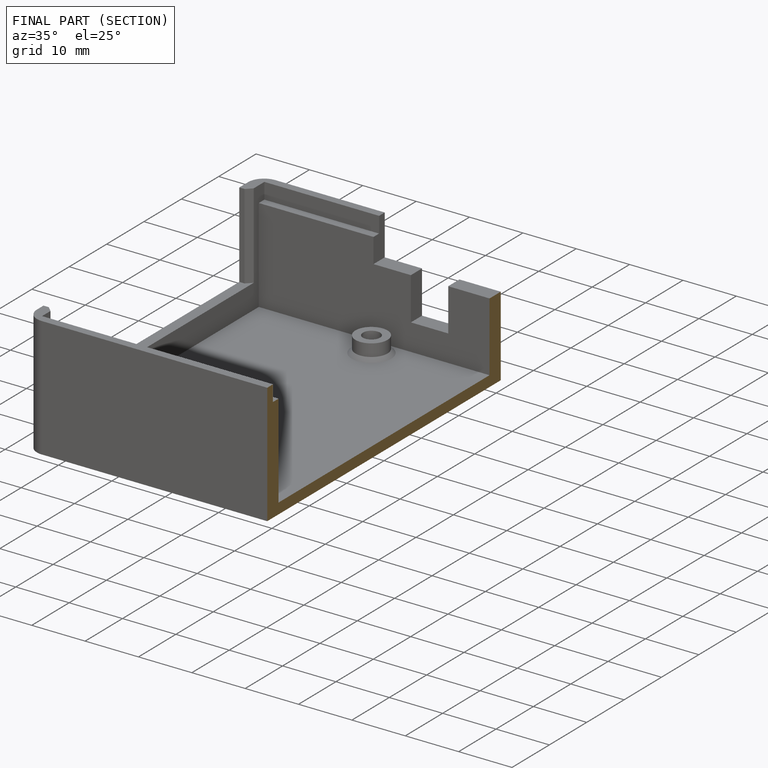
[diagram: finished part — half-section view (interior)]
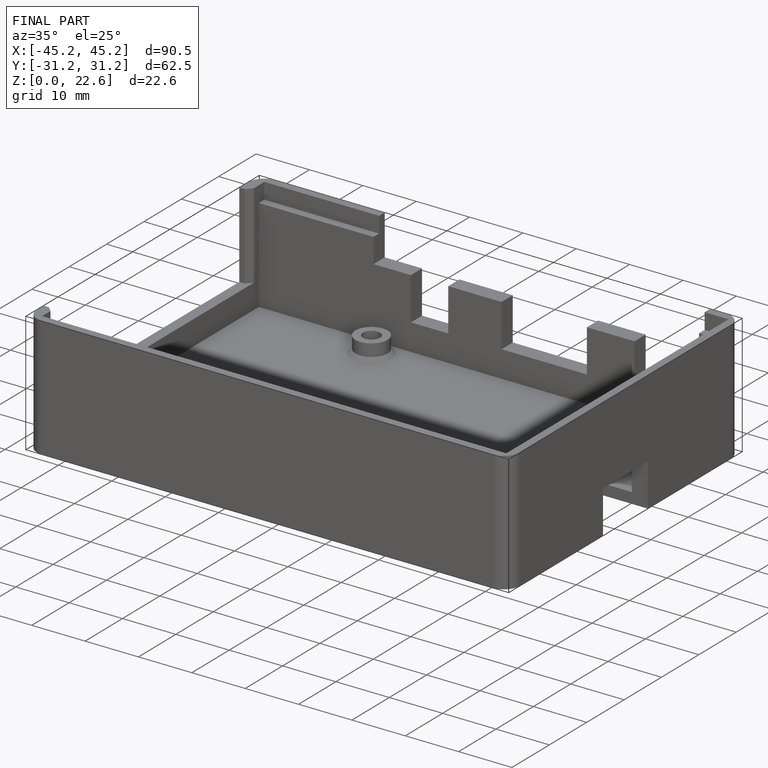
[diagram: finished part — iso view with bounding-box wireframe]
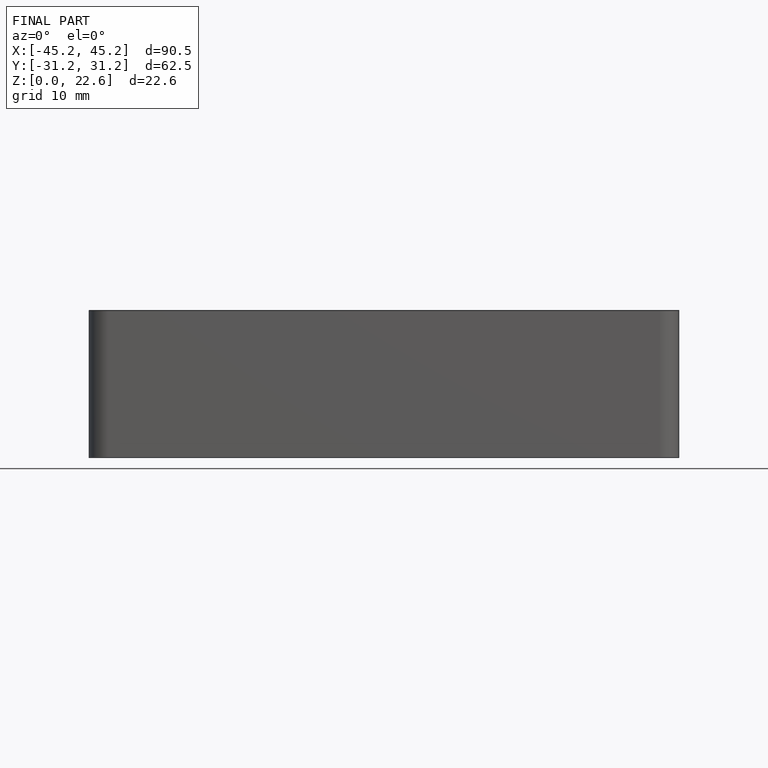
[diagram: finished part — front view with bounding-box wireframe]
